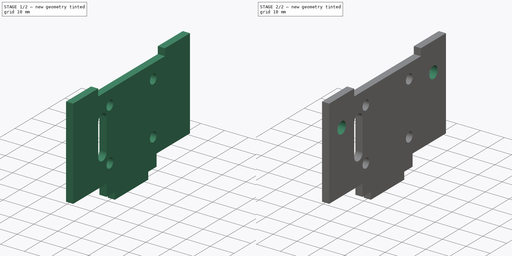
[diagram: build sequence overview — one tinted view per stage of 2, left to right]
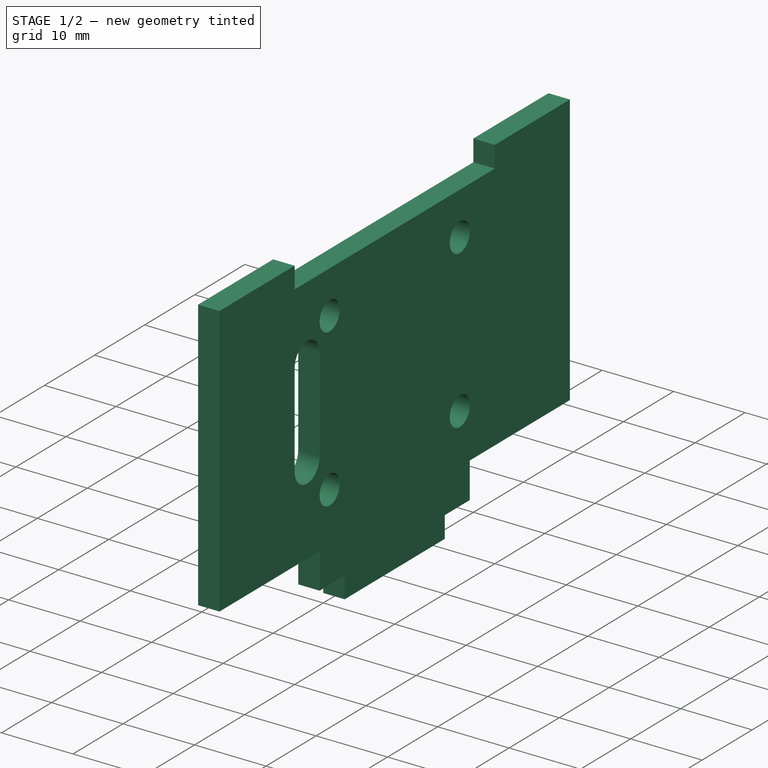
[diagram: stage 1 of 2 — iso view after this stage's code; geometry added in this stage tinted green]
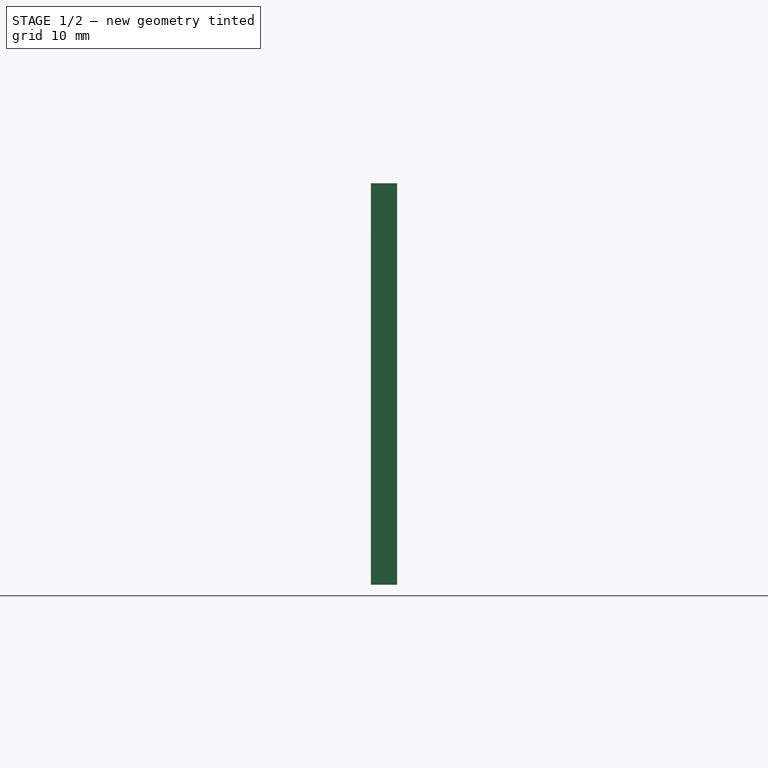
[diagram: stage 1 of 2 — front view after this stage's code; geometry added in this stage tinted green]
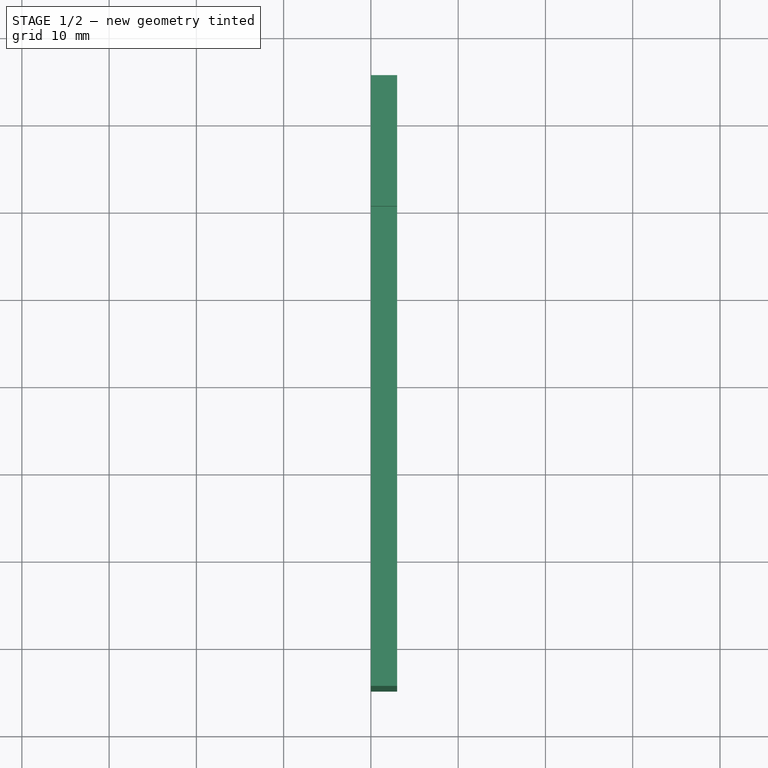
[diagram: stage 1 of 2 — top view after this stage's code; geometry added in this stage tinted green]
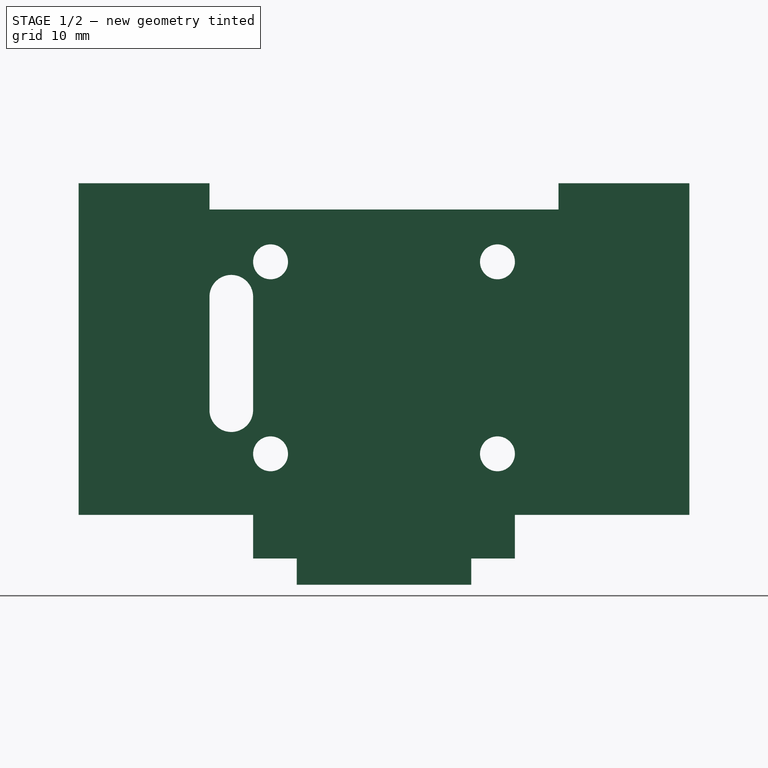
[diagram: stage 1 of 2 — right view after this stage's code; geometry added in this stage tinted green]
FCSTD DOCUMENT  (FreeCAD 0.15R4671 (Git))
Label: EduRoMAAFAtras
License: CreativeCommons Attribution-ShareAlike
LicenseURL: http://creativecommons.org/licenses/by-sa/4.0/
objects: Sketcher::SketchObject×3, PartDesign::Pocket×2, Part::Part2DObjectPython×2, PartDesign::Pad×1
note: 11 computed .brp shape members not serialized (recipe doc carries the construction recipe); baked Part::Feature solids carry a one-line shape summary decoded from their .brp

FEATURE [Sketcher::SketchObject] Sketch004  label="SiluetaAtrasSketch"
  Placement = pos=(0,0,0) rot=(0.57735,0.57735,0.57735;2.0944rad)
  sketch-geometry (16):
    g0: LineSegment StartX=-35 StartY=38 StartZ=0 EndX=-20 EndY=38 EndZ=0
    g1: LineSegment StartX=-20 StartY=38 StartZ=0 EndX=-20 EndY=35 EndZ=0
    g2: LineSegment StartX=-20 StartY=35 StartZ=0 EndX=20 EndY=35 EndZ=0
    g3: LineSegment StartX=20 StartY=35 StartZ=0 EndX=20 EndY=38 EndZ=0
    g4: LineSegment StartX=20 StartY=38 StartZ=0 EndX=35 EndY=38 EndZ=0
    g5: LineSegment StartX=35 StartY=38 StartZ=0 EndX=35 EndY=0 EndZ=0
    g6: LineSegment StartX=35 StartY=0 StartZ=0 EndX=15 EndY=0 EndZ=0
    g7: LineSegment StartX=15 StartY=0 StartZ=0 EndX=15 EndY=-5 EndZ=0
    g8: LineSegment StartX=15 StartY=-5 StartZ=0 EndX=10 EndY=-5 EndZ=0
    g9: LineSegment StartX=10 StartY=-5 StartZ=0 EndX=10 EndY=-8 EndZ=0
    g10: LineSegment StartX=10 StartY=-8 StartZ=0 EndX=-10 EndY=-8 EndZ=0
    g11: LineSegment StartX=-10 StartY=-8 StartZ=0 EndX=-10 EndY=-5 EndZ=0
    g12: LineSegment StartX=-10 StartY=-5 StartZ=0 EndX=-15 EndY=-5 EndZ=0
    g13: LineSegment StartX=-15 StartY=-5 StartZ=0 EndX=-15 EndY=0 EndZ=0
    g14: LineSegment StartX=-15 StartY=0 StartZ=0 EndX=-35 EndY=0 EndZ=0
    g15: LineSegment StartX=-35 StartY=0 StartZ=0 EndX=-35 EndY=38 EndZ=0
  constraints (48):
    c: Horizontal(g0)
    c: Coincident(g0,g1)
    c: Coincident(g1,g2)
    c: Horizontal(g2)
    c: Coincident(g2,g3)
    c: Coincident(g3,g4)
    c: Coincident(g4,g5)
    c: Vertical(g5)
    c: Coincident(g5,g6)
    c: Horizontal(g6)
    c: Coincident(g6,g7)
    c: Vertical(g7)
    c: Coincident(g7,g8)
    c: Horizontal(g8)
    c: Coincident(g8,g9)
    c: Coincident(g9,g10)
    c: Horizontal(g10)
    c: Coincident(g10,g11)
    c: Vertical(g11)
    c: Coincident(g11,g12)
    c: Coincident(g12,g13)
    c: Coincident(g13,g14)
    c: Horizontal(g14)
    c: Coincident(g14,g15)
    c: Coincident(g15,g0)
    c: Vertical(g15)
    c: Horizontal(g4)
    c: Horizontal(g12)
    c: Vertical(g9)
    c: Vertical(g3)
    c: Vertical(g1)
    c: Vertical(g13)
    c: Equal(g0,g4)
    c: Equal(g14,g6)
    c: Equal(g12,g8)
    c: Symmetric(g1,g2,g-2)
    c: Equal(g3,g1)
    c: Equal(g11,g9)
    c: Equal(g1,g11)
    c: Equal(g15,g5)
    c: DistanceX(g2) = 40
    c: DistanceX(g0) = 15
    c: DistanceX(g10) = -20
    c: DistanceX(g14) = -20
    c: DistanceY(g9) = -3
    c: DistanceY(g15) = 38
    c: DistanceY(g7) = -5
    c: PointOnObject(g13,g-1)
FEATURE [PartDesign::Pad] Pad001  label="AtrasRelleno"
  Length = 3
  Length2 = 100
  Placement = pos=(0,0,0) rot=(0.57735,0.57735,0.57735;2.0944rad)
  Sketch = -> Sketch004
  Type = 0
FEATURE [Sketcher::SketchObject] Sketch010  label="BluethootSketch"
  Placement = pos=(3,0,0) rot=(0.57735,0.57735,0.57735;2.0944rad)
  Support = -> Pad001 [Face18]
  sketch-geometry (9):
    g0: Circle CenterX=-13 CenterY=29 CenterZ=0 NormalX=0 NormalY=0 NormalZ=1 Radius=2
    g1: Circle CenterX=13 CenterY=29 CenterZ=0 NormalX=0 NormalY=0 NormalZ=1 Radius=2
    g2: Circle CenterX=-13 CenterY=7 CenterZ=0 NormalX=0 NormalY=0 NormalZ=1 Radius=2
    g3: Circle CenterX=13 CenterY=7 CenterZ=0 NormalX=0 NormalY=0 NormalZ=1 Radius=2
    g4: LineSegment [constr] StartX=-13 StartY=29 StartZ=0 EndX=-13 EndY=7 EndZ=0
    g5: LineSegment StartX=-20 StartY=25 StartZ=0 EndX=-20 EndY=12 EndZ=0
    g6: LineSegment StartX=-15 StartY=25 StartZ=0 EndX=-15 EndY=12 EndZ=0
    g7: ArcOfCircle CenterX=-17.5 CenterY=25 CenterZ=0 NormalX=0 NormalY=0 NormalZ=1 Radius=2.5 StartAngle=0 EndAngle=3.14159
    g8: ArcOfCircle CenterX=-17.5 CenterY=12 CenterZ=0 NormalX=0 NormalY=0 NormalZ=1 Radius=2.5 StartAngle=3.14159 EndAngle=6.28319
  constraints (22):
    c: Equal(g0,g2)
    c: Equal(g2,g3)
    c: Equal(g3,g1)
    c: Symmetric(g0,g1,g-2)
    c: Symmetric(g3,g2,g-2)
    c: Radius(g1) = 2
    c: DistanceY(g3,g1) = 22
    c: Coincident(g4,g0)
    c: Coincident(g4,g2)
    c: Vertical(g4)
    c: DistanceX(g0,g1) = 26
    c: Tangent(g5,g7) = -1.5708
    c: Tangent(g6,g7) = 1.5708
    c: Tangent(g5,g8) = -1.5708
    c: Tangent(g6,g8) = 1.5708
    c: Vertical(g5)
    c: Vertical(g6)
    c: DistanceY(g7,g8) = -13
    c: Radius(g7) = 2.5
    c: DistanceX(g8,g2) = 4.5
    c: DistanceY(g-1,g2) = 7
    c: DistanceY(g0,g7) = -4
FEATURE [PartDesign::Pocket] Pocket007  label="AtrasSoporteBT"
  Length = 5
  Placement = pos=(0,0,0) rot=(0.57735,0.57735,0.57735;2.0944rad)
  Sketch = -> Sketch010
  Type = 1
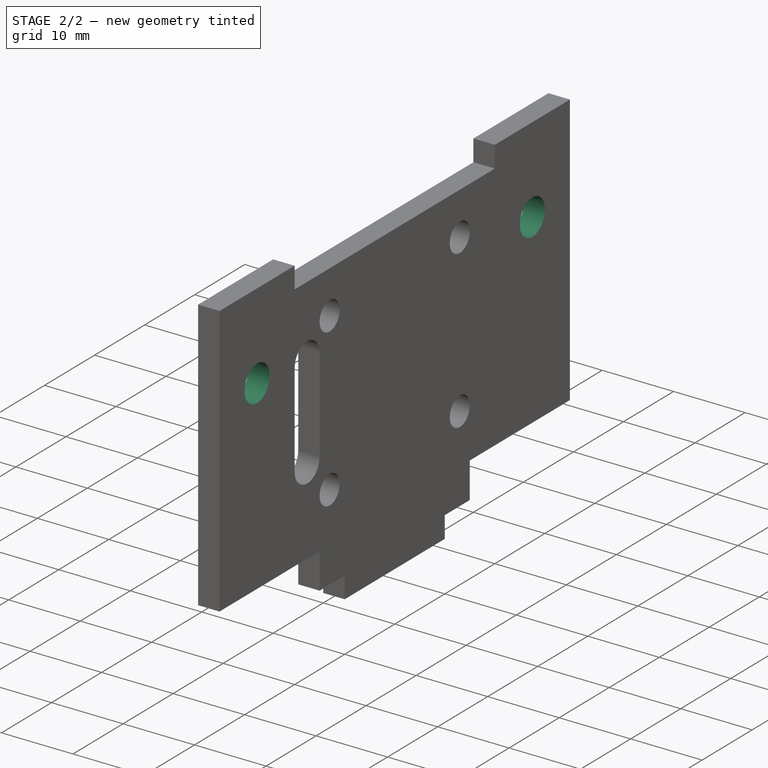
[diagram: stage 2 of 2 — iso view after this stage's code; geometry added in this stage tinted green]
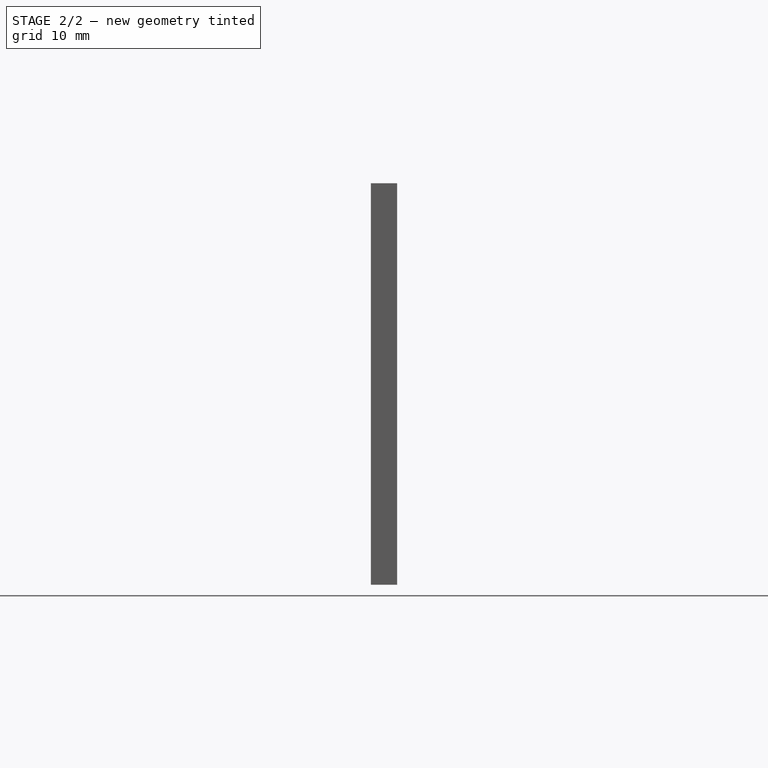
[diagram: stage 2 of 2 — front view after this stage's code; geometry added in this stage tinted green]
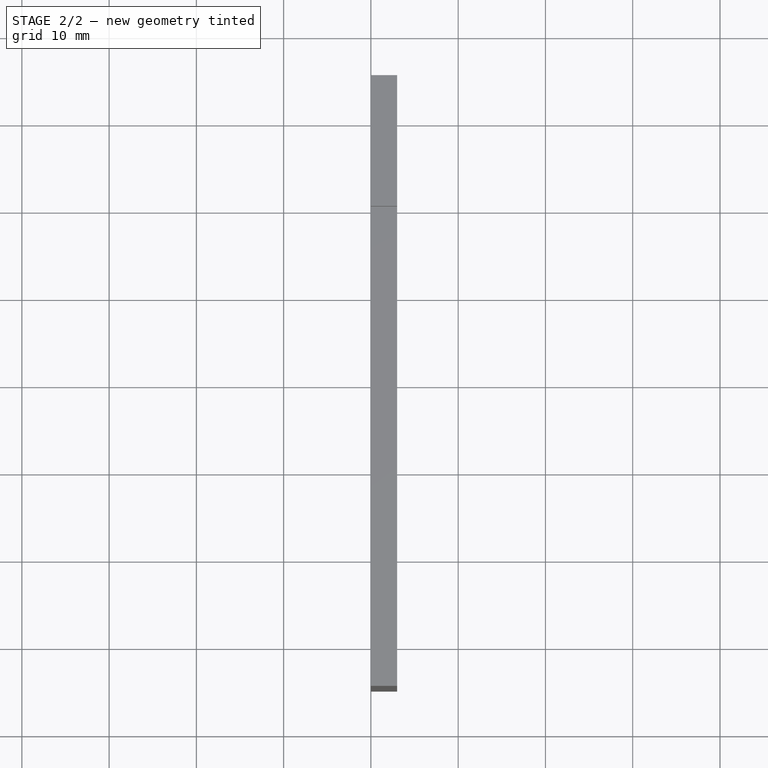
[diagram: stage 2 of 2 — top view after this stage's code; geometry added in this stage tinted green]
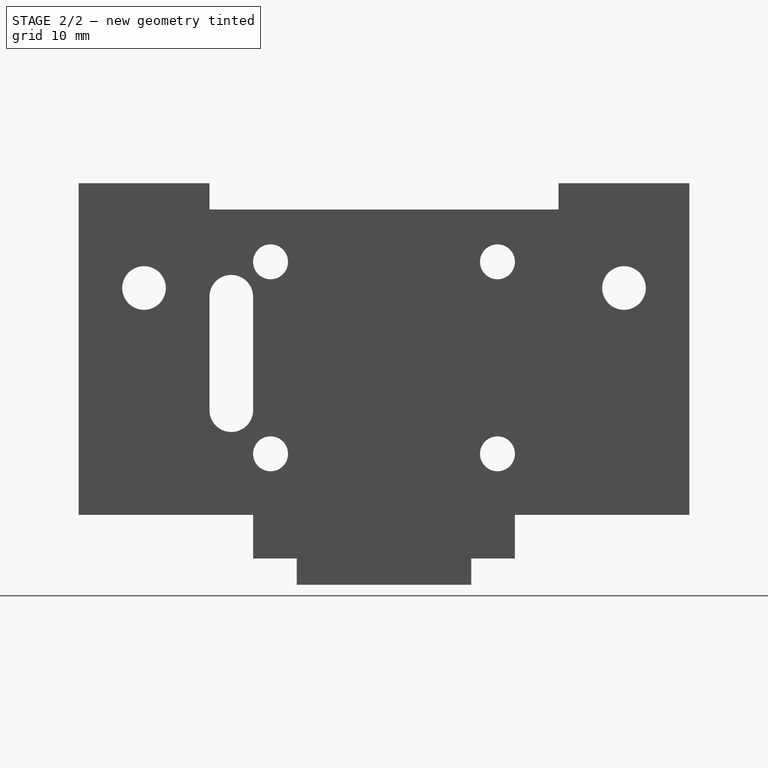
[diagram: stage 2 of 2 — right view after this stage's code; geometry added in this stage tinted green]
FEATURE [Sketcher::SketchObject] Sketch011  label="LEDSketch"
  ExternalGeometry = -> [Pocket007]
  Placement = pos=(3,0,0) rot=(0.57735,0.57735,0.57735;2.0944rad)
  Support = -> Pocket007 [Face5]
  sketch-geometry (2):
    g0: Circle CenterX=-27.5 CenterY=26 CenterZ=0 NormalX=0 NormalY=0 NormalZ=1 Radius=2.5
    g1: Circle CenterX=27.5 CenterY=26 CenterZ=0 NormalX=0 NormalY=0 NormalZ=1 Radius=2.5
  constraints (5):
    c: Equal(g0,g1)
    c: Symmetric(g1,g0,g-2)
    c: Radius(g1) = 2.5
    c: DistanceX(g-3,g0) = 7.5
    c: DistanceY(g-3,g0) = -12
FEATURE [PartDesign::Pocket] Pocket008  label="AtrasSoporteBTYLED"
  Length = 5
  Placement = pos=(0,0,0) rot=(0.57735,0.57735,0.57735;2.0944rad)
  Sketch = -> Sketch011
  Type = 1
FEATURE [Part::Part2DObjectPython] Shape2DView001  label="AtrasSoporteBT_corte2D"  # Draft 2D object (typed FeaturePython)
  Base = -> Pocket007
  HiddenLines = false
  Projection = (1,0,0)
  ProjectionMode = 0
  SegmentLength = 0.05
  Tessellation = false
FEATURE [Part::Part2DObjectPython] Shape2DView  label="AtrasSoporteBTYLED_corte2D"  # Draft 2D object (typed FeaturePython)
  Base = -> Pocket008
  HiddenLines = false
  Projection = (1,0,0)
  ProjectionMode = 0
  SegmentLength = 0.05
  Tessellation = false
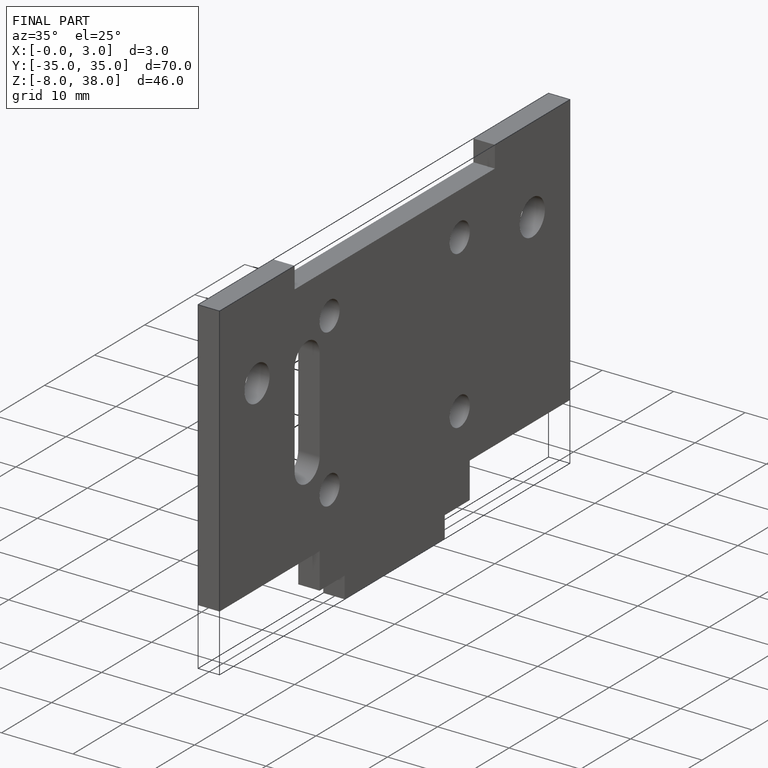
[diagram: finished part — iso view with bounding-box wireframe]
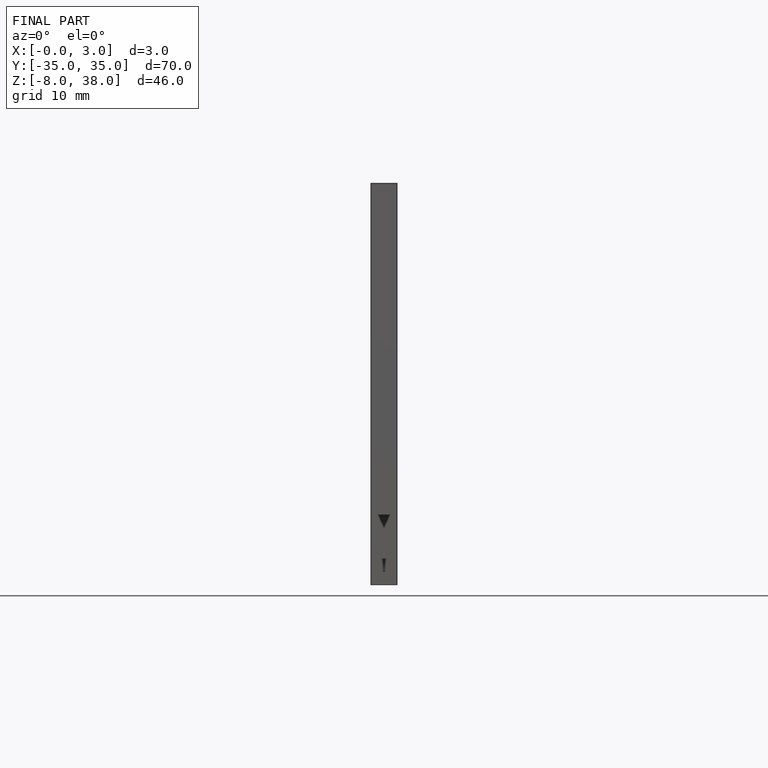
[diagram: finished part — front view with bounding-box wireframe]
